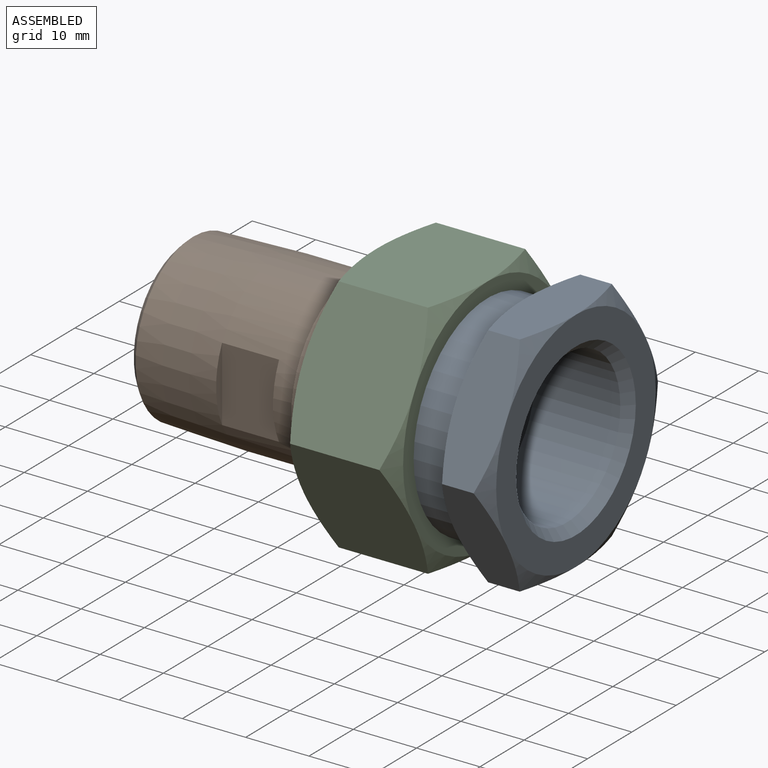
[diagram: assembled view]
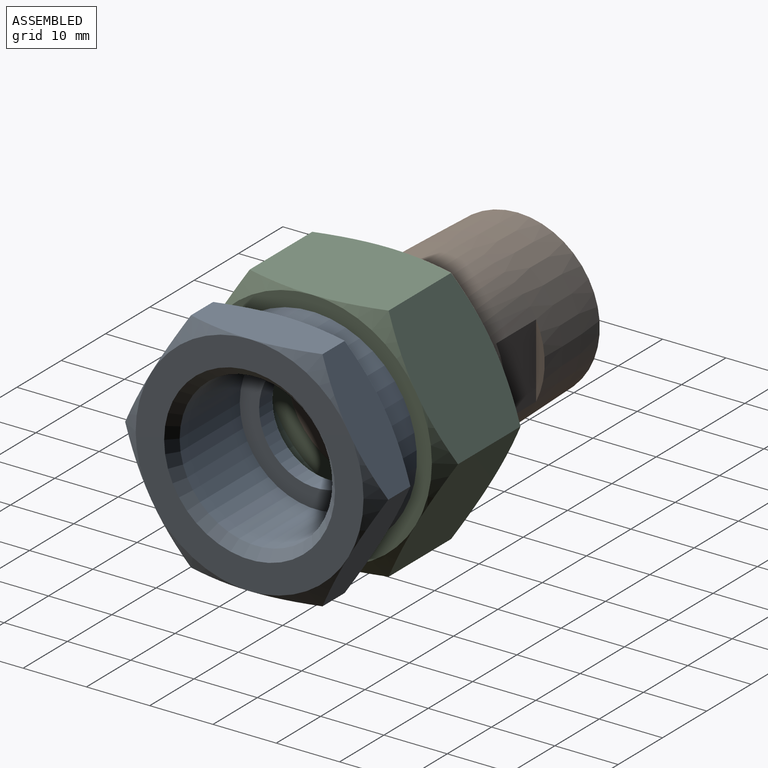
[diagram: assembled view, second angle]
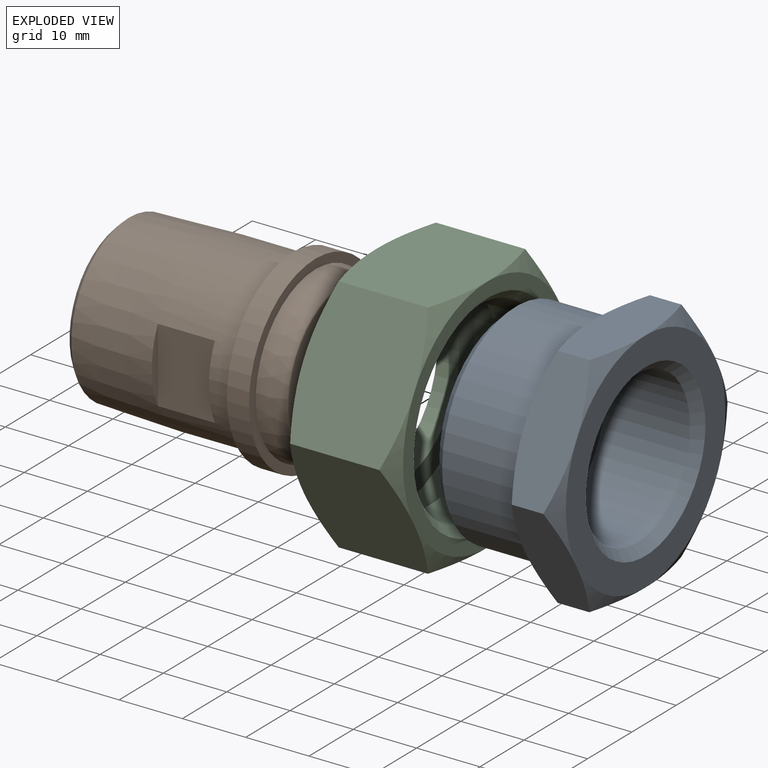
[diagram: exploded view]
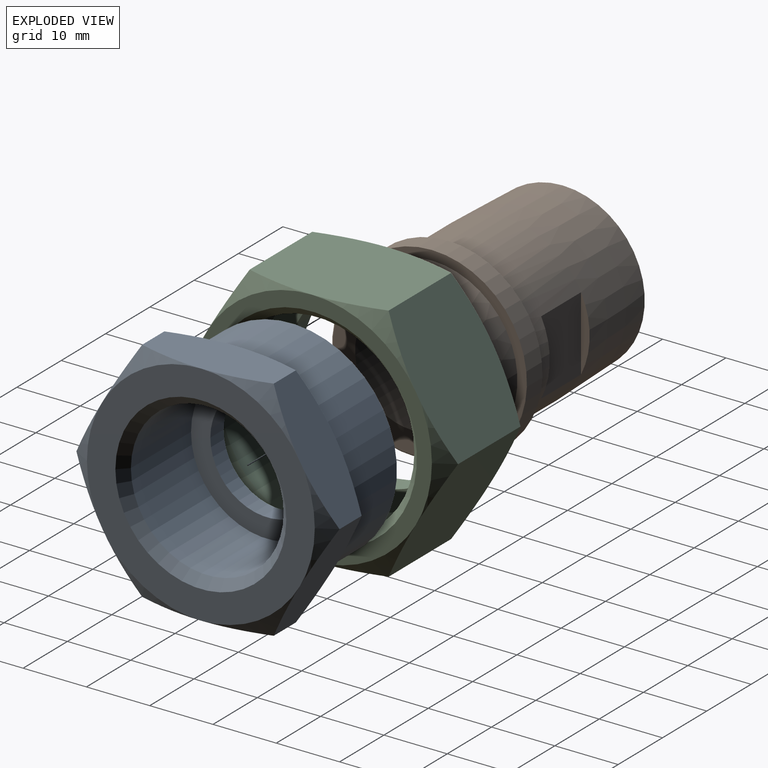
[diagram: exploded view, second angle]
ASSEMBLY  parts=3 mates=2
PART A: 23 faces, bbox 22x41.6x41.6 mm
  f0: cone r=12.84mm half-angle=15deg, axis (-1,0,0), area 334mm2, adj f19,f22
  f1: cone r=15.88mm half-angle=45deg, axis (1,0,0), area 211.6mm2, adj f2,f22
  f2: cylinder r=16.62mm len=33.25mm, axis (-1,0,0), area 1201.3mm2, adj f1,f3
  f3: cone r=20.87mm half-angle=60deg, axis (1,0,0), area 293.4mm2, adj f2,f9,f10,f11,f12,f13,f14
  f4: cone r=12.78mm half-angle=45deg, axis (1,0,0), area 163.5mm2, adj f5,f21
  f5: cylinder r=12.06mm len=24.12mm, axis (-1,0,0), area 1027.5mm2, adj f4,f20
  f6: cylinder r=9mm len=18mm, axis (-1,0,0), area 169.6mm2, adj f19,f20
  f7: cone r=21.55mm half-angle=60deg, axis (-1,0,0), area 20.1mm2, adj f10,f12,f21
  f8: cone r=21.55mm half-angle=60deg, axis (-1,0,0), area 20.1mm2, adj f9,f14,f21
  f9: plane 18x10.39mm, normal (0,0.87,-0.5), area 147.6mm2, adj f3,f8,f11,f14,f15
  f10: plane 18x10.39mm, normal (0,-0.87,-0.5), area 147.6mm2, adj f3,f7,f11,f12,f18
  f11: plane 20.78x8.97mm, normal (0,0,-1), area 147.6mm2, adj f3,f9,f10,f15,f18
  f12: plane 18x10.39mm, normal (0,-0.87,0.5), area 147.6mm2, adj f3,f7,f10,f13,f17
  f13: plane 20.78x8.97mm, normal (0,0,1), area 147.6mm2, adj f3,f12,f14,f16,f17
  f14: plane 18x10.39mm, normal (0,0.87,0.5), area 147.6mm2, adj f3,f8,f9,f13,f16
  f15: cone r=21.55mm half-angle=60deg, axis (-1,0,0), area 20.1mm2, adj f9,f11,f21
  f16: cone r=21.55mm half-angle=60deg, axis (-1,0,0), area 20.1mm2, adj f13,f14,f21
  f17: cone r=21.55mm half-angle=60deg, axis (-1,0,0), area 20.1mm2, adj f12,f13,f21
  f18: cone r=21.55mm half-angle=60deg, axis (-1,0,0), area 20.1mm2, adj f10,f11,f21
  f19: plane 24.6x24.6mm, normal (-1,0,0), area 220.8mm2, adj f0,f6
  f20: plane 24.12x24.12mm, normal (1,0,0), area 202.5mm2, adj f5,f6
  f21: plane 36x36mm, normal (1,0,0), area 445.3mm2, adj f4,f7,f8,f15,f16,f17,f18
  f22: plane 30.25x30.25mm, normal (-1,0,0), area 157mm2, adj f0,f1
PART B: 17 faces, bbox 35x30x30 mm
  f0: cylinder r=9mm len=35mm, axis (-1,0,0), area 1979.2mm2, adj f13,f16
  f1: cone r=12.44mm half-angle=45.9deg, axis (1,0,0), area 112.3mm2, adj f2,f16
  f2: cone r=13.16mm half-angle=1.8deg, axis (1,0,0), area 1075.4mm2, adj f1,f6,f8,f12
  f3: cylinder r=15mm len=30mm, axis (-1,0,0), area 329.9mm2, adj f14,f15
  f4: cone r=13.13mm half-angle=10deg, axis (-1,0,0), area 356.1mm2, adj f5,f14
  f5: torus R=12.45mm, axis (-1,0,0), area 33.2mm2, adj f4,f13
  f6: cylinder r=13.36mm len=26.72mm, axis (-1,0,0), area 872.4mm2, adj f2,f7,f9,f10,f11,f15
  f7: plane 11.75x9mm, normal (0,-1,0), area 105.7mm2, adj f6,f10,f12
  f8: plane 11.75x1.36mm, normal (1,0,0), area 10.8mm2, adj f2,f11
  f9: plane 11.75x1.36mm, normal (-1,0,0), area 10.8mm2, adj f6,f11
  f10: plane 11.75x1.36mm, normal (-1,0,0), area 10.8mm2, adj f6,f7
  f11: plane 11.75x9mm, normal (0,1,0), area 105.7mm2, adj f6,f8,f9
  f12: plane 11.75x1.36mm, normal (1,0,0), area 10.8mm2, adj f2,f7
  f13: plane 24.91x24.91mm, normal (1,0,0), area 232.9mm2, adj f0,f5
  f14: plane 30x30mm, normal (1,0,0), area 134.3mm2, adj f3,f4
  f15: plane 30x30mm, normal (-1,0,0), area 146.1mm2, adj f3,f6
  f16: plane 23.85x23.85mm, normal (-1,0,0), area 192.3mm2, adj f0,f1
PART C: 26 faces, bbox 17.5x43.9x43.9 mm
  f0: cylinder r=13.7mm len=27.4mm, axis (-1,0,0), area 301.3mm2, adj f22,f25
  f1: cone r=15.96mm half-angle=45deg, axis (1,0,0), area 187.9mm2, adj f2,f24
  f2: cylinder r=15.3mm len=30.6mm, axis (-1,0,0), area 737.8mm2, adj f1,f23
  f3: cylinder r=17mm len=34mm, axis (-1,0,0), area 534.1mm2, adj f22,f23
  f4: cone r=22.17mm half-angle=60deg, axis (-1,0,0), area 22.4mm2, adj f9,f11,f24
  f5: cone r=22.17mm half-angle=60deg, axis (-1,0,0), area 22.4mm2, adj f8,f13,f24
  f6: cone r=22.17mm half-angle=60deg, axis (1,0,0), area 22.4mm2, adj f9,f11,f25
  f7: cone r=22.17mm half-angle=60deg, axis (1,0,0), area 22.4mm2, adj f8,f13,f25
  f8: plane 19x17.5mm, normal (0,0.87,-0.5), area 358.4mm2, adj f5,f7,f10,f13,f16,f18
  f9: plane 19x17.5mm, normal (0,-0.87,-0.5), area 358.4mm2, adj f4,f6,f10,f11,f17,f21
  f10: plane 21.94x17.5mm, normal (0,0,-1), area 358.4mm2, adj f8,f9,f16,f17,f18,f21
  f11: plane 19x17.5mm, normal (0,-0.87,0.5), area 358.4mm2, adj f4,f6,f9,f12,f14,f20
  f12: plane 21.94x17.5mm, normal (0,0,1), area 358.4mm2, adj f11,f13,f14,f15,f19,f20
  f13: plane 19x17.5mm, normal (0,0.87,0.5), area 358.4mm2, adj f5,f7,f8,f12,f15,f19
  f14: cone r=22.17mm half-angle=60deg, axis (1,0,0), area 22.4mm2, adj f11,f12,f25
  f15: cone r=22.17mm half-angle=60deg, axis (1,0,0), area 22.4mm2, adj f12,f13,f25
  f16: cone r=22.17mm half-angle=60deg, axis (1,0,0), area 22.4mm2, adj f8,f10,f25
  f17: cone r=22.17mm half-angle=60deg, axis (1,0,0), area 22.4mm2, adj f9,f10,f25
  f18: cone r=22.17mm half-angle=60deg, axis (-1,0,0), area 22.4mm2, adj f8,f10,f24
  f19: cone r=22.17mm half-angle=60deg, axis (-1,0,0), area 22.4mm2, adj f12,f13,f24
  f20: cone r=22.17mm half-angle=60deg, axis (-1,0,0), area 22.4mm2, adj f11,f12,f24
  f21: cone r=22.17mm half-angle=60deg, axis (-1,0,0), area 22.4mm2, adj f9,f10,f24
  f22: plane 34x34mm, normal (1,0,0), area 318.3mm2, adj f0,f3
  f23: plane 34x34mm, normal (-1,0,0), area 172.5mm2, adj f2,f3
  f24: plane 38x38mm, normal (1,0,0), area 265.8mm2, adj f1,f4,f5,f18,f19,f20,f21
  f25: plane 38x38mm, normal (-1,0,0), area 544.5mm2, adj f0,f6,f7,f14,f15,f16,f17
PLACE A t=(-27.13,-6.71,-5.22)mm
PLACE B t=(-33.63,-6.71,-5.22)mm
PLACE C t=(-27.13,-6.71,-5.22)mm
MATE slider A.f0 <-> C.f0  axis (-1,0,0) through (5.87,-6.71,-5.22)mm
MATE slider B.f5 <-> C.f0  axis (1,0,0) through (1.37,-6.71,-5.22)mm
